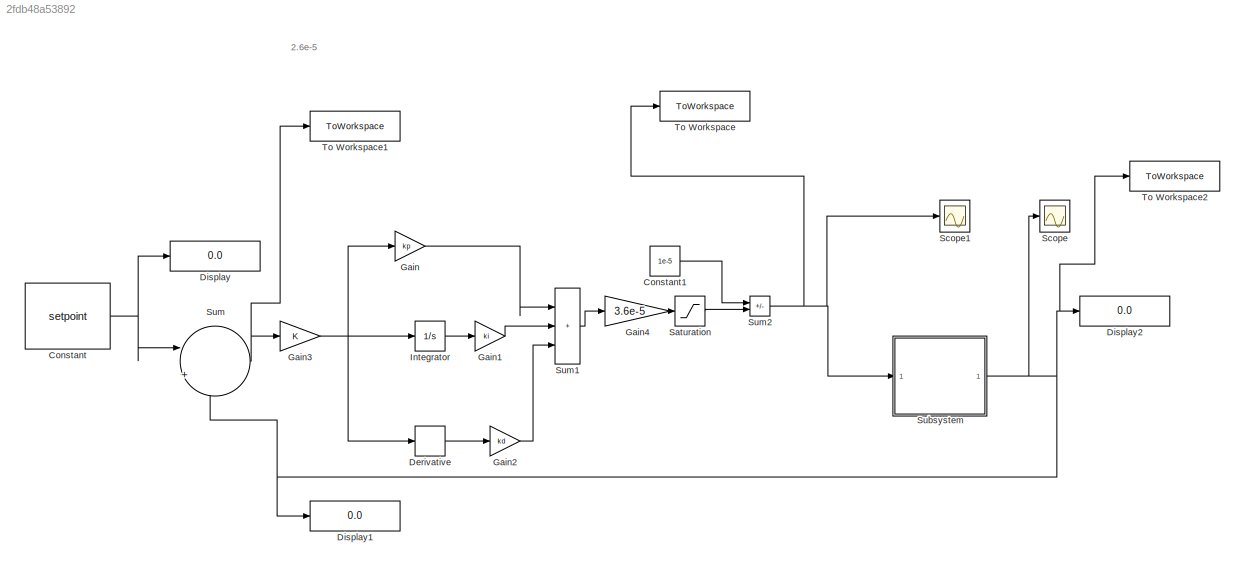
MODEL slx_2fdb48a53892
KIND model
CONFIG AbsTol = 1e-6
CONFIG EnableMultiTasking = off
CONFIG FixedStep = 0.1
CONFIG MaxStep = 0.01
CONFIG MinStep = auto
CONFIG RelTol = 1e-3
CONFIG SampleTimeConstraint = Unconstrained
CONFIG SolverName = ode15s
CONFIG StartTime = 0.0
CONFIG StopTime = simTime
BLOCK [Constant] Constant
  Value = setpoint
BLOCK [Constant] Constant1
  Value = 1e-5
BLOCK [Derivative] Derivative
BLOCK [Display] Display
  Decimation = 1
BLOCK [Display] Display1
  Decimation = 1
BLOCK [Display] Display2
  Decimation = 1
BLOCK [Gain] Gain
  Gain = kp
BLOCK [Gain] Gain1
  Gain = ki
BLOCK [Gain] Gain2
  Gain = kd
BLOCK [Gain] Gain3
BLOCK [Gain] Gain4
  Gain = 3.6e-5
BLOCK [Integrator] Integrator
BLOCK [Saturate] Saturation
  LowerLimit = 1e-5
  UpperLimit = 3.6e-5
BLOCK [Scope] Scope
  Floating = off
  NumInputPorts = 1
  ScopeSpecificationString = Simulink.scopes.TimeScopeBlockCfg('CurrentConfiguration', extmgr.ConfigurationSet(extmgr.Configuration('Core','General UI',true),extmgr.Configuration('Core','Source UI',true),extmgr.Configuration('Sources','WiredSimulink',true),extmgr.Configuration('Visuals','Time Domain',true,'SerializedDisplays',{struct('MinYLimReal','-1.00000','MaxYLimReal','1.00000','YLabelReal','','MinYLimMag','0.00000','MaxY...<+1519ch>
BLOCK [Scope] Scope1
  Floating = off
  NumInputPorts = 1
  ScopeSpecificationString = Simulink.scopes.TimeScopeBlockCfg('CurrentConfiguration', extmgr.ConfigurationSet(extmgr.Configuration('Core','General UI',true),extmgr.Configuration('Core','Source UI',true),extmgr.Configuration('Sources','WiredSimulink',true,'DataLoggingVariableName','ScopeData1'),extmgr.Configuration('Visuals','Time Domain',true,'SerializedDisplays',{struct('MinYLimReal','-0.000001','MaxYLimReal','0.000031','YL...<+1518ch>
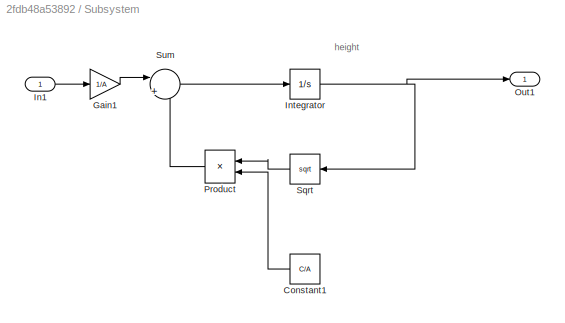
BLOCK [SubSystem] Subsystem
BLOCK [Constant] Subsystem/Constant1
  Value = C/A
BLOCK [Gain] Subsystem/Gain1
  Gain = 1/A
BLOCK [Inport] Subsystem/In1
BLOCK [Integrator] Subsystem/Integrator
BLOCK [Outport] Subsystem/Out1
BLOCK [Product] Subsystem/Product
BLOCK [Sqrt] Subsystem/Sqrt
BLOCK [Sum] Subsystem/Sum
  Inputs = |+-
BLOCK [Sum] Sum
  Inputs = |+-
BLOCK [Sum] Sum1
  IconShape = rectangular
  Inputs = |+++
BLOCK [Sum] Sum2
  IconShape = rectangular
  Inputs = -+
BLOCK [ToWorkspace] To Workspace
  FixptAsFi = on
  MaxDataPoints = inf
  SampleTime = -1
  SaveFormat = Structure With Time
  VariableName = sim_inflow_rate
BLOCK [ToWorkspace] To Workspace1
  FixptAsFi = on
  MaxDataPoints = inf
  SampleTime = -1
  SaveFormat = Structure With Time
  VariableName = simerror_calc
BLOCK [ToWorkspace] To Workspace2
  FixptAsFi = on
  MaxDataPoints = inf
  SampleTime = -1
  SaveFormat = Structure With Time
  VariableName = height_sim
ANNOTATION (root): 2.6e-5
ANNOTATION Subsystem: height
LINE Constant1:1 -> Sum2:1
NET Constant:1 -> Display:1, Sum:1
LINE Derivative:1 -> Gain2:1
LINE Gain1:1 -> Sum1:2
LINE Gain2:1 -> Sum1:3
NET Gain3:1 -> Derivative:1, Gain:1, Integrator:1
LINE Gain4:1 -> Saturation:1
LINE Gain:1 -> Sum1:1
LINE Integrator:1 -> Gain1:1
LINE Saturation:1 -> Sum2:2
LINE Subsystem/Constant1:1 -> Subsystem/Product:2
LINE Subsystem/Gain1:1 -> Subsystem/Sum:1
LINE Subsystem/In1:1 -> Subsystem/Gain1:1
NET Subsystem/Integrator:1 -> Subsystem/Out1:1, Subsystem/Sqrt:1
LINE Subsystem/Product:1 -> Subsystem/Sum:2
LINE Subsystem/Sqrt:1 -> Subsystem/Product:1
LINE Subsystem/Sum:1 -> Subsystem/Integrator:1
NET Subsystem:1 -> Display1:1, Display2:1, Scope:1, Sum:2, To Workspace2:1
LINE Sum1:1 -> Gain4:1
NET Sum2:1 -> Scope1:1, Subsystem:1, To Workspace:1
NET Sum:1 -> Gain3:1, To Workspace1:1
note: NET lines group one-source signal fan-out (src -> all destinations, sorted); 1:1 wires keep LINE
